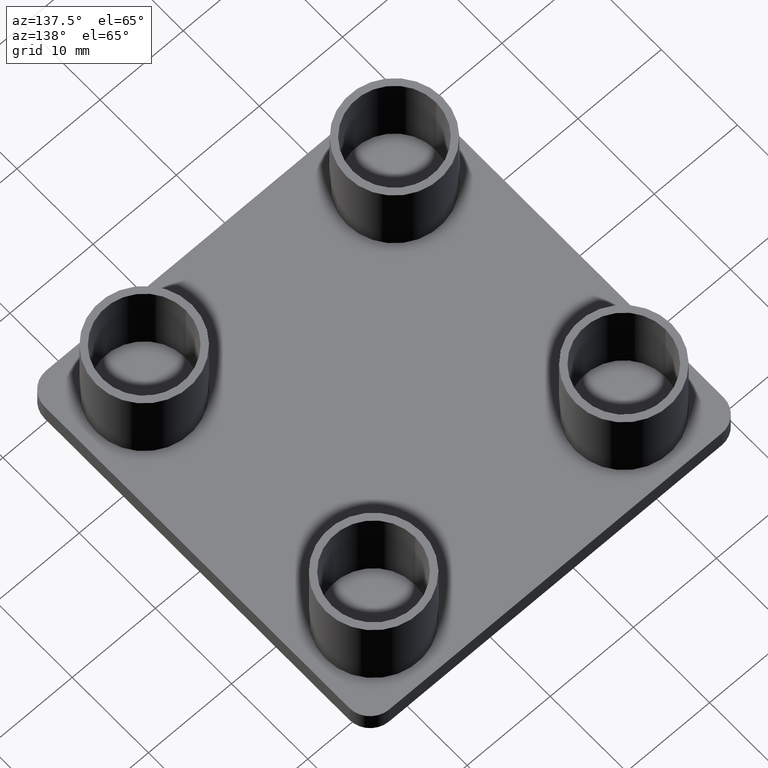
[diagram: clean part render]
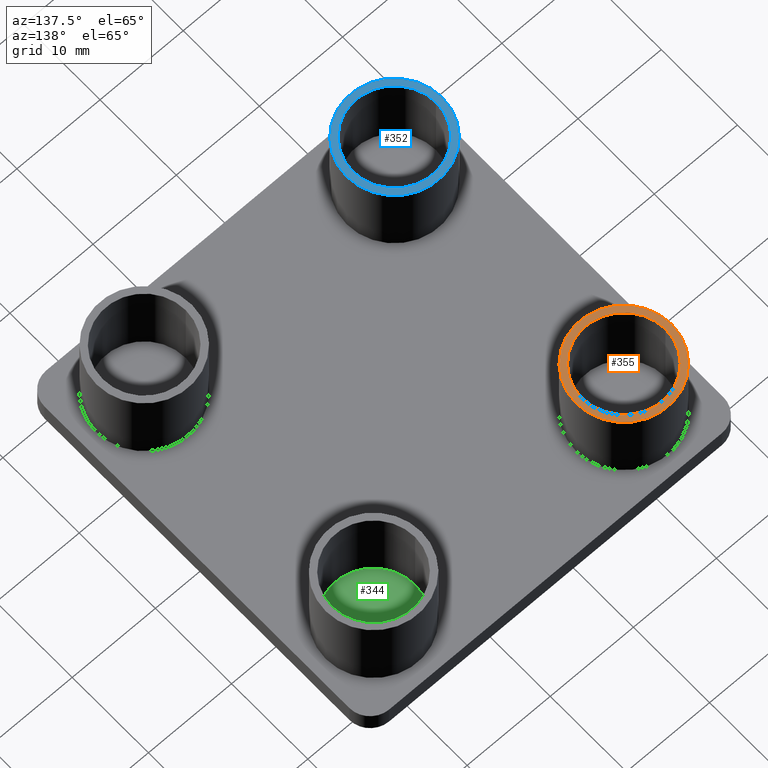
[diagram: same view with three faces highlighted in distinct colors, each labeled with its STEP entity id]
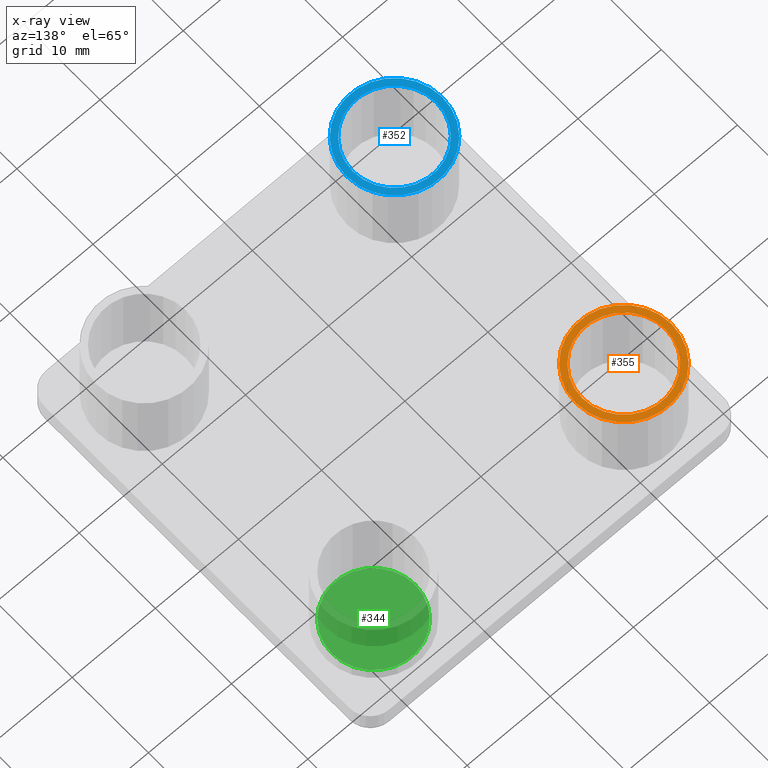
[diagram: x-ray of the same camera — body ghosted, the three highlighted faces saturated]
A machine part, auxiliary view with three faces highlighted in distinct colors.
The next image is the same camera in x-ray (body ghosted, the three faces saturated) — at least one of them is partly hidden behind the body in this view.
Their STEP definitions:

[orange] entity #355 — the highlighted planar face has unit normal (0, 0, 1).
#27=FACE_BOUND('',#106,.T.);
#43=PLANE('',#405);
#67=FACE_OUTER_BOUND('',#105,.T.);
#105=EDGE_LOOP('',(#313));
#106=EDGE_LOOP('',(#314));
#133=CIRCLE('',#402,5.749999999977);
#134=CIRCLE('',#404,4.99999999998);
#197=VERTEX_POINT('',#615);
#198=VERTEX_POINT('',#618);
#237=EDGE_CURVE('',#197,#197,#133,.T.);
#238=EDGE_CURVE('',#198,#198,#134,.T.);
#313=ORIENTED_EDGE('',*,*,#237,.T.);
#314=ORIENTED_EDGE('',*,*,#238,.T.);
#355=ADVANCED_FACE('',(#67,#27),#43,.T.);
#402=AXIS2_PLACEMENT_3D('',#616,#511,#512);
#404=AXIS2_PLACEMENT_3D('',#619,#515,#516);
#405=AXIS2_PLACEMENT_3D('',#620,#517,#518);
#511=DIRECTION('center_axis',(0.,0.,1.));
#512=DIRECTION('ref_axis',(1.,0.,0.));
#515=DIRECTION('center_axis',(0.,0.,-1.));
#516=DIRECTION('ref_axis',(1.,0.,0.));
#517=DIRECTION('center_axis',(0.,0.,1.));
#518=DIRECTION('ref_axis',(1.,0.,0.));
#615=CARTESIAN_POINT('',(1.69995549999275,15.0500224999396,10.));
#616=CARTESIAN_POINT('Origin',(7.44995549996974,15.0500224999396,10.));
#618=CARTESIAN_POINT('',(2.44995549998975,15.0500224999396,10.));
#619=CARTESIAN_POINT('Origin',(7.44995549996974,15.0500224999396,10.));
#620=CARTESIAN_POINT('Origin',(0.549950766050188,8.15001776604822,10.));

[blue] entity #352 — the highlighted planar face has unit normal (0, 0, 1).
#24=FACE_BOUND('',#100,.T.);
#42=PLANE('',#400);
#64=FACE_OUTER_BOUND('',#99,.T.);
#99=EDGE_LOOP('',(#307));
#100=EDGE_LOOP('',(#308));
#131=CIRCLE('',#397,5.749999999977);
#132=CIRCLE('',#399,4.99999999998);
#195=VERTEX_POINT('',#608);
#196=VERTEX_POINT('',#611);
#235=EDGE_CURVE('',#195,#195,#131,.T.);
#236=EDGE_CURVE('',#196,#196,#132,.T.);
#307=ORIENTED_EDGE('',*,*,#235,.T.);
#308=ORIENTED_EDGE('',*,*,#236,.T.);
#352=ADVANCED_FACE('',(#64,#24),#42,.T.);
#397=AXIS2_PLACEMENT_3D('',#609,#501,#502);
#399=AXIS2_PLACEMENT_3D('',#612,#505,#506);
#400=AXIS2_PLACEMENT_3D('',#613,#507,#508);
#501=DIRECTION('center_axis',(0.,0.,1.));
#502=DIRECTION('ref_axis',(1.,0.,0.));
#505=DIRECTION('center_axis',(0.,0.,-1.));
#506=DIRECTION('ref_axis',(1.,0.,0.));
#507=DIRECTION('center_axis',(0.,0.,1.));
#508=DIRECTION('ref_axis',(1.,0.,0.));
#608=CARTESIAN_POINT('',(1.69995549999275,-15.05002249994,10.));
#609=CARTESIAN_POINT('Origin',(7.44995549996974,-15.05002249994,10.));
#611=CARTESIAN_POINT('',(2.44995549998975,-15.05002249994,10.));
#612=CARTESIAN_POINT('Origin',(7.44995549996974,-15.05002249994,10.));
#613=CARTESIAN_POINT('Origin',(0.549950766130678,-21.9500272337514,10.));

[green] entity #344 — the highlighted planar face has unit normal (0, 0, 1).
#38=PLANE('',#386);
#56=FACE_OUTER_BOUND('',#86,.T.);
#86=EDGE_LOOP('',(#287));
#127=CIRCLE('',#387,4.99999999998);
#191=VERTEX_POINT('',#594);
#231=EDGE_CURVE('',#191,#191,#127,.T.);
#287=ORIENTED_EDGE('',*,*,#231,.F.);
#344=ADVANCED_FACE('',(#56),#38,.T.);
#386=AXIS2_PLACEMENT_3D('',#593,#479,#480);
#387=AXIS2_PLACEMENT_3D('',#595,#481,#482);
#479=DIRECTION('center_axis',(0.,0.,1.));
#480=DIRECTION('ref_axis',(1.,0.,0.));
#481=DIRECTION('center_axis',(0.,0.,-1.));
#482=DIRECTION('ref_axis',(1.,0.,0.));
#593=CARTESIAN_POINT('Origin',(-4.50000083393388,-26.9999788337341,0.));
#594=CARTESIAN_POINT('',(32.5499554998696,15.0499774999398,0.));
#595=CARTESIAN_POINT('Origin',(37.5499554998496,15.0499774999398,0.));